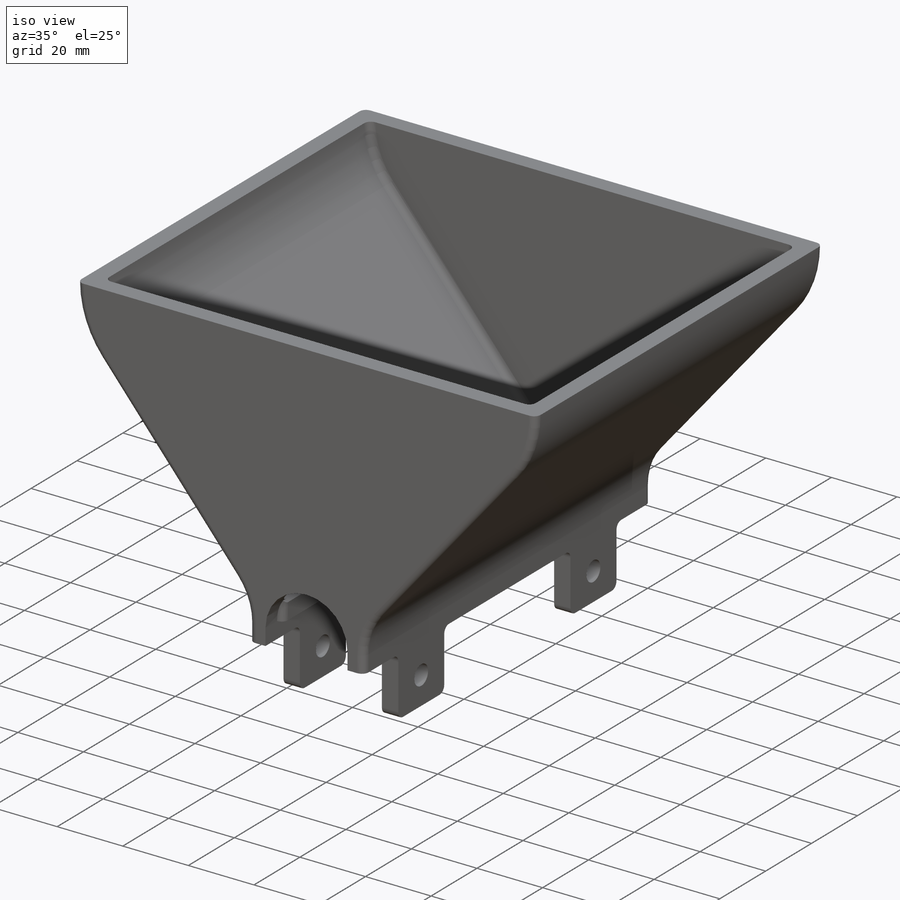
[diagram: iso view]
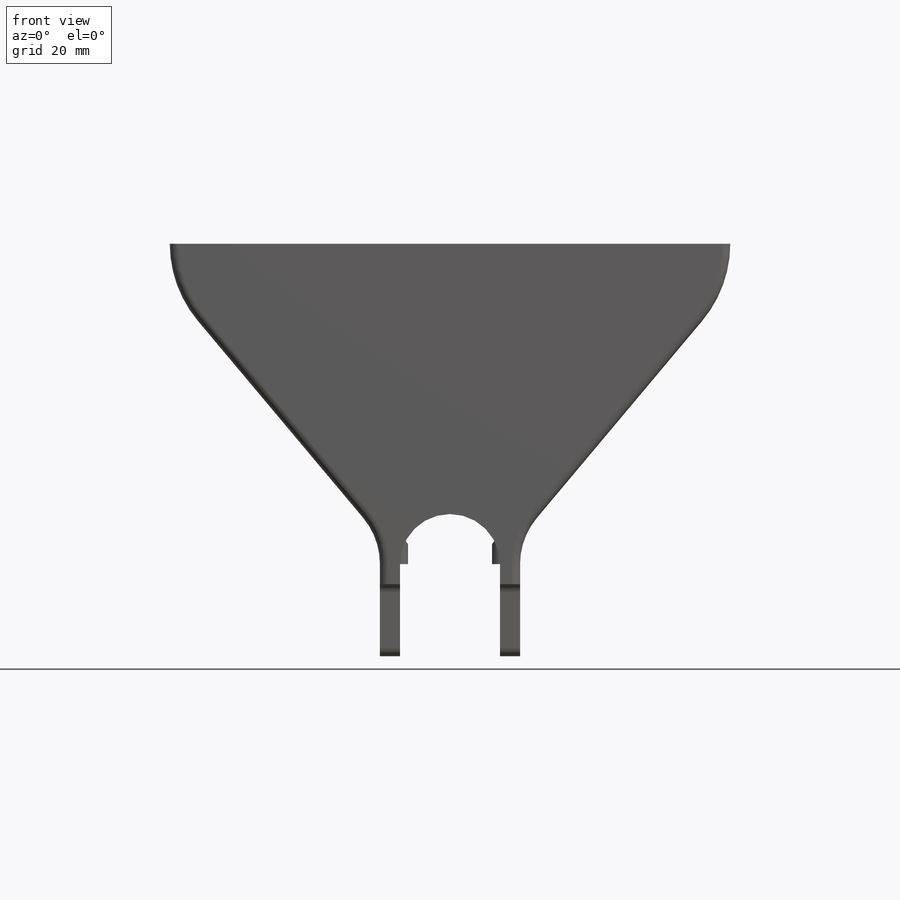
[diagram: front view]
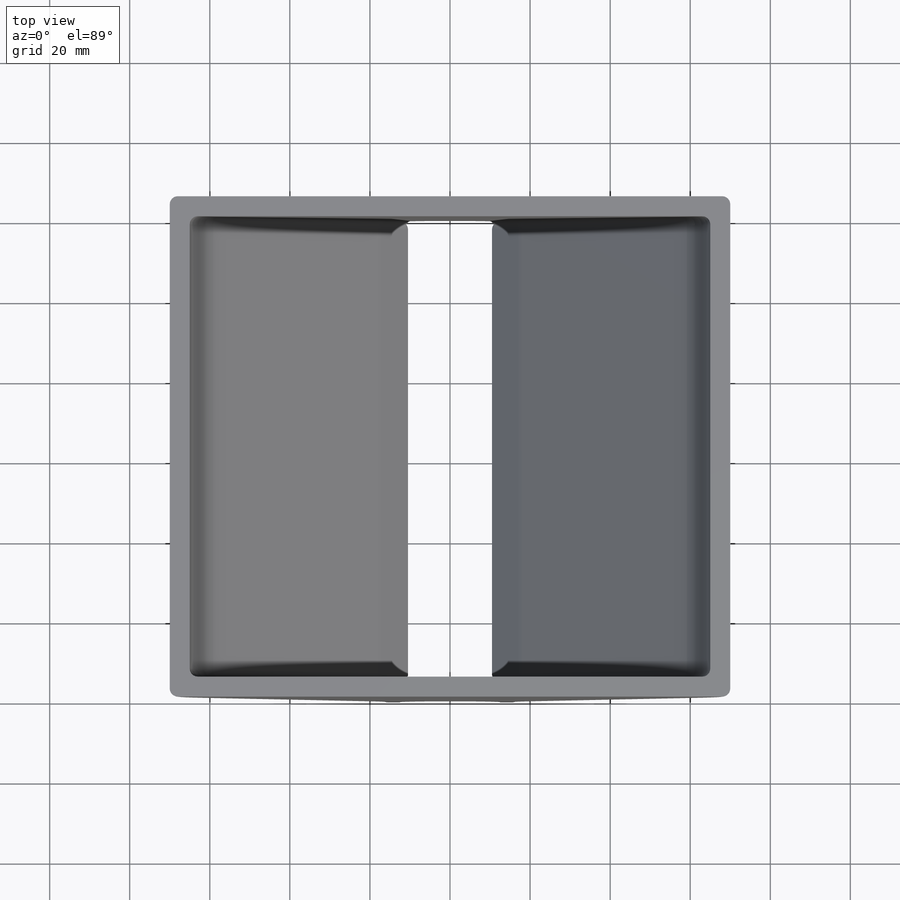
[diagram: top view]
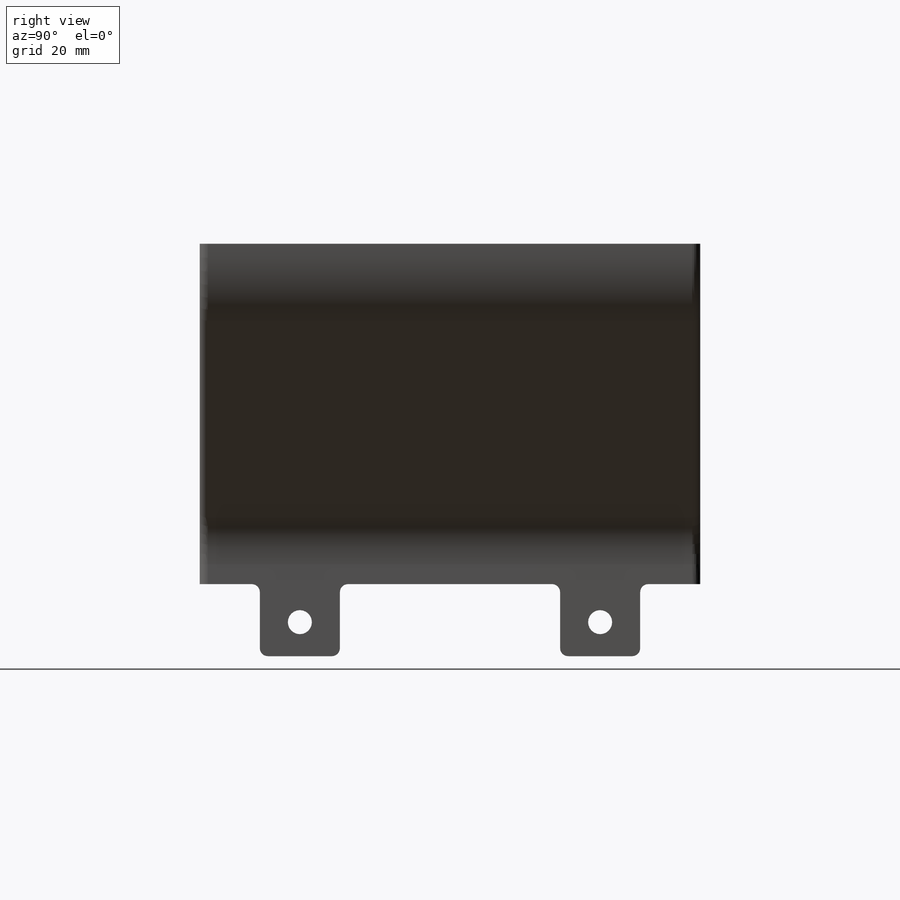
[diagram: right view]
SOLIDWORKS PART (.sldprt)
format: sldprt  version: not decoded by parser v0  size: 474,112 bytes
history: native  units: mm
features: sketch x7, extrude x4, plane x3, cut_extrude x3, fillet x3, material x1 (+13 scaffold rows collapsed)
feature tree (34):
  scaffold x13  (default folders/planes/origin — collapsed)
  material  "Gomma"
  plane  "Piano frontale"
  plane  "Piano superiore"
  plane  "Piano destro"
  sketch  "Schizzo1"  dims[c1.D1=25.0mm c1.D2=26.0mm c1.D3=~117.650969mm c1.D4=~10.014603mm c1.D7=~21.538462mm c1.D5=2.0mm c2.D4=~1347.284398mm c2.D7=2.0mm c2.D11=18.0mm c2.D2=2.0mm c2.D3=2.0mm c3.D4=2.0mm c3.D5=2.0mm c3.D6=80.0mm c3.D7=2.0mm c3.D8=2.0mm c3.D9=5.0mm c3.D10=5.0mm c3.D3=80.0mm c4.D5=5.0mm c4.D2=5.0mm c4.D4=~14.477806mm c5.D4=50.0deg c5.D6=70.0mm c5.D7=~7.569443mm c5.D11=90.0mm c5.D12=~37.463016mm c6.D11=~37.315803mm]
  extrude  "Estrusione-Estrusione1"  Depth=115mm
  sketch  "Schizzo2"  dims[D1=0.0mm D2=0.0mm]
  sketch  "Schizzo5"
  extrude  "Estrusione-Estrusione9"  Depth=5mm
  extrude  "Estrusione-Estrusione10"  [1 undecoded]
  sketch  "Schizzo2<6>"  dims[D1=5.0mm]
  cut_extrude  "Taglio-Estrusione4"  Depth=5mm
  cut_extrude  "Taglio-Estrusione5"  [1 undecoded]
  sketch  "Schizzo5<2>"  dims[D1=5.0mm]
  fillet  "Raccordo1"  Radius=2mm
  fillet  "Raccordo2"  Radius=2mm
  sketch  "Schizzo7"  dims[D1=15.0mm D2=20.0mm D3=15.0mm D4=15.0mm D5=15.0mm]
  extrude  "Estrusione-Estrusione11"  Depth=18mm
  sketch  "Schizzo8"  dims[c1.D1=~9.465874mm c1.D2=6.0mm c1.D3=6.0mm c2.D1=24.0mm]
  cut_extrude  "Taglio-Estrusione6"  [1 undecoded]
  fillet  "Raccordo3"  Radius=2mm
decode coverage: 13 of 17 modeling features carry decoded parameters
note: ~ marks probable driven/reference dimensions
note: 3 parameter values undecoded
summary: no parameter record found for 3 features
note: suppression state not decoded; provenance and decode notes live in map.json
